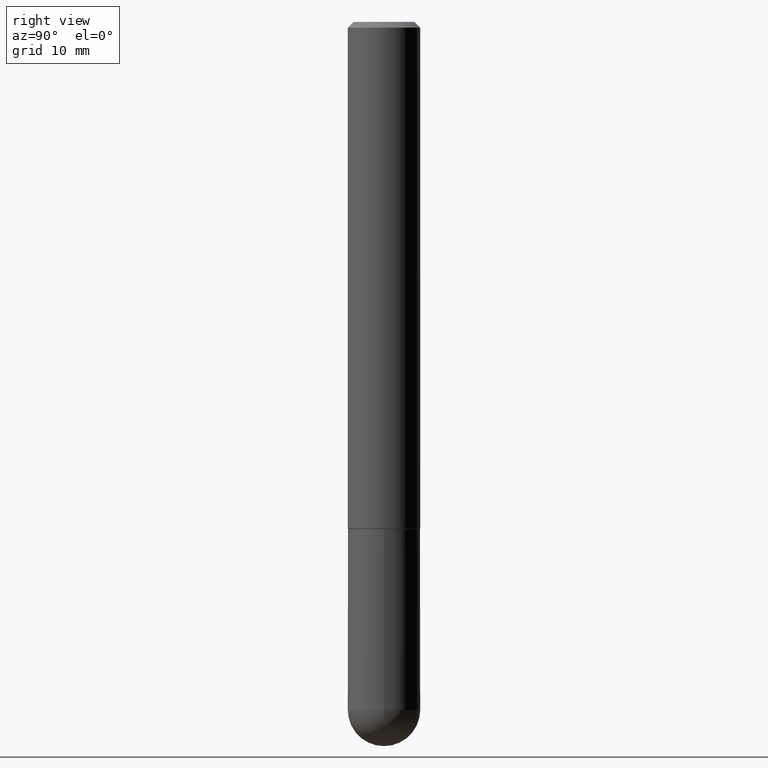
[diagram: clean part render]
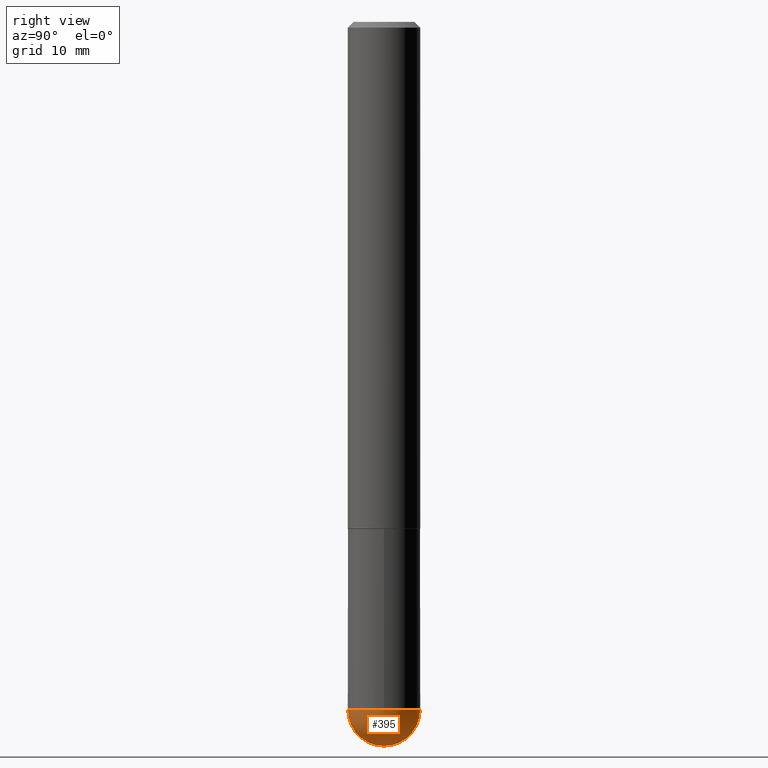
[diagram: same view with one face highlighted and labeled with its STEP entity id]
A machine part, right view. The second image highlights one B-rep face of the part: STEP entity #395.
In plain terms, the highlighted spherical surface has radius 3.175 mm.
Its self-contained STEP definition (entity closure, byte-faithful):
#2 = CARTESIAN_POINT ( 'NONE',  ( 0.1250000000000000000, -8.074050596074771916E-15, -2.375000000000000000 ) ) ;
#10 = CARTESIAN_POINT ( 'NONE',  ( 5.807988414689700538E-29, -8.292268179752471696E-15, -2.375000000000000000 ) ) ;
#15 = AXIS2_PLACEMENT_3D ( 'NONE', #176, #330, #267 ) ;
#21 = FACE_OUTER_BOUND ( 'NONE', #123, .T. ) ;
#42 = VERTEX_POINT ( 'NONE', #2 ) ;
#44 = DIRECTION ( 'NONE',  ( 6.982962677686265133E-15, 1.000000000000000000, 0.000000000000000000 ) ) ;
#46 = AXIS2_PLACEMENT_3D ( 'NONE', #173, #136, #44 ) ;
#58 = VERTEX_POINT ( 'NONE', #72 ) ;
#63 = CIRCLE ( 'NONE', #15, 0.1250000000000001943 ) ;
#72 = CARTESIAN_POINT ( 'NONE',  ( -8.881784197000694204E-16, -0.1250000000000086320, -2.374999999999999556 ) ) ;
#83 = ORIENTED_EDGE ( 'NONE', *, *, #298, .F. ) ;
#100 = EDGE_CURVE ( 'NONE', #58, #42, #262, .T. ) ;
#123 = EDGE_LOOP ( 'NONE', ( #184, #355, #83, #353 ) ) ;
#136 = DIRECTION ( 'NONE',  ( 1.000000000000000000, -6.982962677686265922E-15, 4.883557194083112340E-29 ) ) ;
#138 = DIRECTION ( 'NONE',  ( -2.445468806185136597E-29, 3.491481338843145583E-15, 1.000000000000000000 ) ) ;
#144 = CARTESIAN_POINT ( 'NONE',  ( 8.728703347108403340E-16, 0.1249999999999915623, -2.375000000000000888 ) ) ;
#173 = CARTESIAN_POINT ( 'NONE',  ( 5.476868636775814291E-29, -8.766450547892521992E-15, -2.375000000000000000 ) ) ;
#176 = CARTESIAN_POINT ( 'NONE',  ( 5.476868636775814291E-29, -8.766450547892521992E-15, -2.375000000000000000 ) ) ;
#178 = EDGE_CURVE ( 'NONE', #190, #373, #361, .T. ) ;
#182 = EDGE_CURVE ( 'NONE', #190, #58, #63, .T. ) ;
#183 = DIRECTION ( 'NONE',  ( -1.000000000000000000, 6.982962677686265922E-15, -4.883557194083112901E-29 ) ) ;
#184 = ORIENTED_EDGE ( 'NONE', *, *, #182, .F. ) ;
#189 = CARTESIAN_POINT ( 'NONE',  ( 5.476868636775814291E-29, -8.766450547892521992E-15, -2.375000000000000000 ) ) ;
#190 = VERTEX_POINT ( 'NONE', #303 ) ;
#228 = AXIS2_PLACEMENT_3D ( 'NONE', #299, #321, #378 ) ;
#237 = DIRECTION ( 'NONE',  ( 1.000000000000000000, -6.982962677686270655E-15, 0.000000000000000000 ) ) ;
#248 = DIRECTION ( 'NONE',  ( 6.982962677686265922E-15, 1.000000000000000000, -4.370956789862814839E-15 ) ) ;
#262 = CIRCLE ( 'NONE', #228, 0.1250000000000000000 ) ;
#267 = DIRECTION ( 'NONE',  ( -7.105427357601000281E-15, -1.000000000000000000, 0.000000000000000000 ) ) ;
#268 = AXIS2_PLACEMENT_3D ( 'NONE', #10, #138, #237 ) ;
#298 = EDGE_CURVE ( 'NONE', #42, #373, #306, .T. ) ;
#299 = CARTESIAN_POINT ( 'NONE',  ( 5.807988414689700538E-29, -8.292268179752471696E-15, -2.375000000000000000 ) ) ;
#303 = CARTESIAN_POINT ( 'NONE',  ( 5.787897026856327965E-29, -9.195231672753244292E-15, -2.500000000000000444 ) ) ;
#306 = CIRCLE ( 'NONE', #268, 0.1250000000000000000 ) ;
#321 = DIRECTION ( 'NONE',  ( -2.445468806185136597E-29, 3.491481338843145583E-15, 1.000000000000000000 ) ) ;
#327 = AXIS2_PLACEMENT_3D ( 'NONE', #189, #183, #248 ) ;
#330 = DIRECTION ( 'NONE',  ( -1.000000000000000000, 7.105427357601001070E-15, -4.926315508542082329E-29 ) ) ;
#353 = ORIENTED_EDGE ( 'NONE', *, *, #100, .F. ) ;
#355 = ORIENTED_EDGE ( 'NONE', *, *, #178, .T. ) ;
#361 = CIRCLE ( 'NONE', #46, 0.1250000000000001943 ) ;
#373 = VERTEX_POINT ( 'NONE', #144 ) ;
#378 = DIRECTION ( 'NONE',  ( 1.000000000000000000, -6.982962677686270655E-15, 0.000000000000000000 ) ) ;
#395 = ADVANCED_FACE ( 'NONE', ( #21 ), #400, .T. ) ;
#400 = SPHERICAL_SURFACE ( 'NONE', #327, 0.1250000000000001943 ) ;